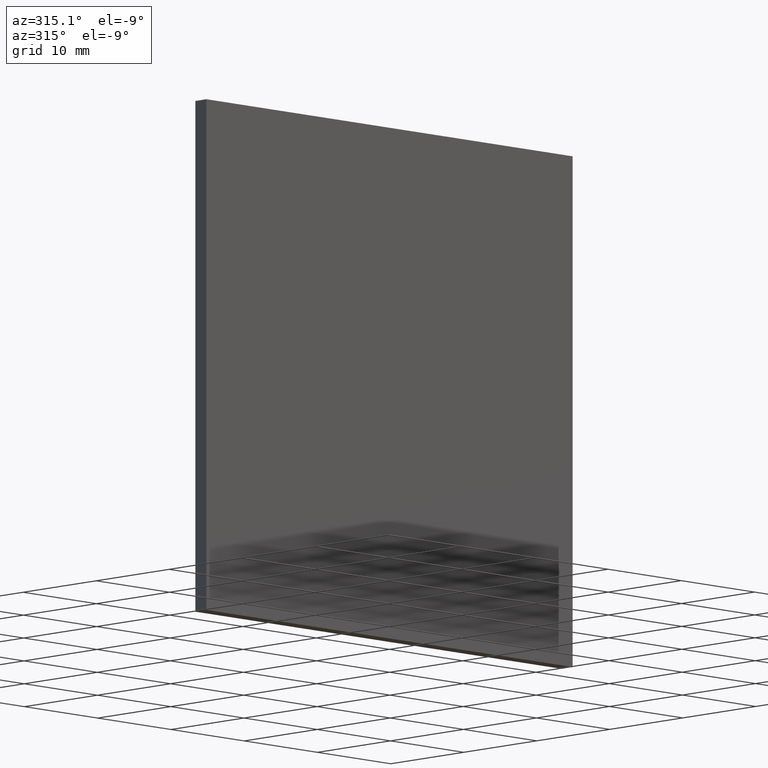
[diagram: clean part render]
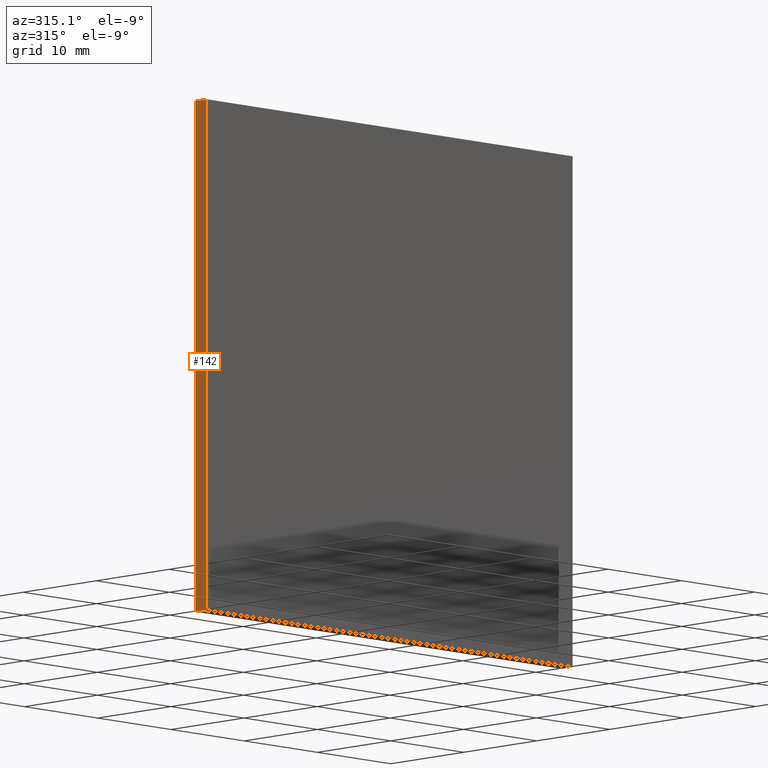
[diagram: same view with one face highlighted and labeled with its STEP entity id]
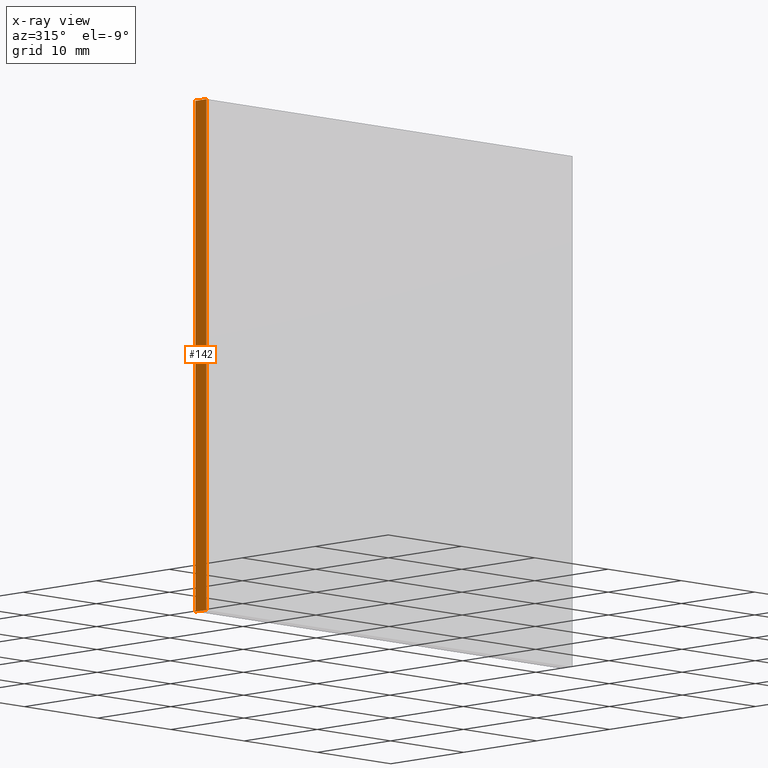
[diagram: x-ray of the same camera — body ghosted, the highlighted face saturated]
A machine part, auxiliary view. The second image highlights one B-rep face of the part: STEP entity #142.
The next image is the same camera in x-ray: the body ghosted, the highlighted face saturated — about 0% of this face is hidden behind the body in this view.
In plain terms, the highlighted planar face has unit normal (1, -0, 0).
Its self-contained STEP definition (entity closure, byte-faithful):
#4 = LINE ( 'NONE', #97, #154 ) ;
#6 = EDGE_CURVE ( 'NONE', #50, #91, #53, .T. ) ;
#8 = ORIENTED_EDGE ( 'NONE', *, *, #180, .F. ) ;
#18 = CARTESIAN_POINT ( 'NONE',  ( -24.99999999999999300, 0.0000000000000000000, -25.00000000000000400 ) ) ;
#33 = CARTESIAN_POINT ( 'NONE',  ( -24.99999999999999300, 0.0000000000000000000, 24.99999999999999600 ) ) ;
#34 = ORIENTED_EDGE ( 'NONE', *, *, #106, .F. ) ;
#36 = DIRECTION ( 'NONE',  ( -0.0000000000000000000, -0.0000000000000000000, 1.000000000000000000 ) ) ;
#39 = DIRECTION ( 'NONE',  ( -0.0000000000000000000, -0.0000000000000000000, 1.000000000000000000 ) ) ;
#46 = VECTOR ( 'NONE', #161, 1000.000000000000000 ) ;
#47 = AXIS2_PLACEMENT_3D ( 'NONE', #60, #196, #202 ) ;
#50 = VERTEX_POINT ( 'NONE', #80 ) ;
#53 = LINE ( 'NONE', #147, #46 ) ;
#54 = FACE_OUTER_BOUND ( 'NONE', #132, .T. ) ;
#55 = ORIENTED_EDGE ( 'NONE', *, *, #133, .T. ) ;
#56 = PLANE ( 'NONE',  #47 ) ;
#60 = CARTESIAN_POINT ( 'NONE',  ( -24.99999999999999300, 1.520000000000000000, 24.99999999999999600 ) ) ;
#67 = VECTOR ( 'NONE', #39, 1000.000000000000000 ) ;
#76 = ORIENTED_EDGE ( 'NONE', *, *, #6, .T. ) ;
#80 = CARTESIAN_POINT ( 'NONE',  ( -24.99999999999999300, 1.520000000000000000, -25.00000000000000400 ) ) ;
#91 = VERTEX_POINT ( 'NONE', #18 ) ;
#96 = LINE ( 'NONE', #167, #67 ) ;
#97 = CARTESIAN_POINT ( 'NONE',  ( -24.99999999999999300, 1.520000000000000000, 24.99999999999999600 ) ) ;
#106 = EDGE_CURVE ( 'NONE', #120, #134, #4, .T. ) ;
#120 = VERTEX_POINT ( 'NONE', #149 ) ;
#123 = CARTESIAN_POINT ( 'NONE',  ( -24.99999999999999300, 0.0000000000000000000, 24.99999999999999600 ) ) ;
#125 = LINE ( 'NONE', #33, #174 ) ;
#132 = EDGE_LOOP ( 'NONE', ( #55, #34, #8, #76 ) ) ;
#133 = EDGE_CURVE ( 'NONE', #91, #134, #125, .T. ) ;
#134 = VERTEX_POINT ( 'NONE', #123 ) ;
#142 = ADVANCED_FACE ( 'NONE', ( #54 ), #56, .F. ) ;
#147 = CARTESIAN_POINT ( 'NONE',  ( -24.99999999999999300, 1.520000000000000000, -25.00000000000000400 ) ) ;
#149 = CARTESIAN_POINT ( 'NONE',  ( -24.99999999999999300, 1.520000000000000000, 24.99999999999999600 ) ) ;
#154 = VECTOR ( 'NONE', #197, 1000.000000000000000 ) ;
#161 = DIRECTION ( 'NONE',  ( -0.0000000000000000000, -1.000000000000000000, -0.0000000000000000000 ) ) ;
#167 = CARTESIAN_POINT ( 'NONE',  ( -24.99999999999999300, 1.520000000000000000, 24.99999999999999600 ) ) ;
#174 = VECTOR ( 'NONE', #36, 1000.000000000000000 ) ;
#180 = EDGE_CURVE ( 'NONE', #50, #120, #96, .T. ) ;
#196 = DIRECTION ( 'NONE',  ( 1.000000000000000000, -0.0000000000000000000, 0.0000000000000000000 ) ) ;
#197 = DIRECTION ( 'NONE',  ( -0.0000000000000000000, -1.000000000000000000, -0.0000000000000000000 ) ) ;
#202 = DIRECTION ( 'NONE',  ( 0.0000000000000000000, 0.0000000000000000000, -1.000000000000000000 ) ) ;